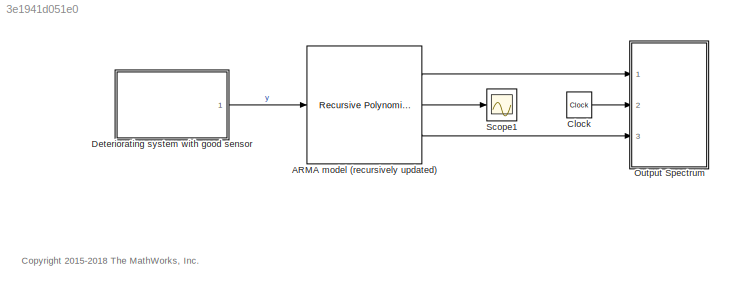
MODEL slx_3e1941d051e0
KIND model
CONFIG AbsTol = auto
CONFIG EnableMultiTasking = on
CONFIG FixedStep = auto
CONFIG MaxStep = auto
CONFIG MinStep = auto
CONFIG PreLoadFcn = Ts = 1/256;\nynoi = 0.2;\nnum0 = [1     -0.10075     -0.26052     -0.24022];\nden0 = [1      -4.5049       8.2675      -7.7122       3.6508         -0.7];\nnumF = [1.2642     -0.12736     -0.32935     -0.30369];\ndenF = [1      -4.5674        8.511      -8.0697       3.8856     -0.75805];\nPFnum = [0.00034    0.0017652   -0.0013829];\nPFden = [1       -1.896      0.91629];
CONFIG RelTol = 1e-3
CONFIG SampleTimeConstraint = Unconstrained
CONFIG SolverName = FixedStepDiscrete
CONFIG StartFcn = clear idARMAXSpectrumPlot
CONFIG StartTime = 0.0
CONFIG StopTime = 200
BLOCK [Reference] ARMA model (recursively updated)  REF=slident/Estimators/Recursive Polynomial Model Estimator  (lib defined in mdl_f7d4911ca73a)
  Ports = [1, 3]
  SourceBlock = slident/Estimators/Recursive Polynomial Model Estimator
  SourceProductBaseCode = ID
  SourceType = idEstimatorsPolyModel
BLOCK [Clock] Clock
  Decimation = 1
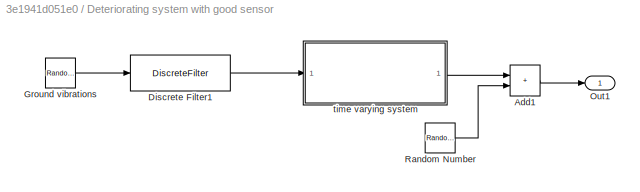
BLOCK [SubSystem] Deteriorating system with good sensor
  Ports = [0, 1]
  RequestExecContextInheritance = off
  VariantControl = DeterioratingSystem
BLOCK [Sum] Deteriorating system with good sensor/Add1
  IconShape = rectangular
  Ports = [2, 1]
BLOCK [DiscreteFilter] Deteriorating system with good sensor/Discrete Filter1
  Denominator = PFden
  InputPortMap = u0
  Numerator = PFnum
  Ports = [1, 1]
BLOCK [RandomNumber] Deteriorating system with good sensor/Ground vibrations
  SampleTime = Ts
  Variance = 0.62074
BLOCK [Outport] Deteriorating system with good sensor/Out1
  VectorParamsAs1DForOutWhenUnconnected = off
BLOCK [RandomNumber] Deteriorating system with good sensor/Random Number
  SampleTime = Ts
  Variance = ynoi
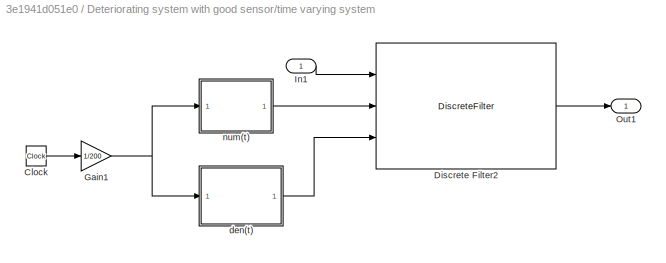
BLOCK [SubSystem] Deteriorating system with good sensor/time varying system
  Ports = [1, 1]
  RequestExecContextInheritance = off
BLOCK [Clock] Deteriorating system with good sensor/time varying system/Clock
BLOCK [DiscreteFilter] Deteriorating system with good sensor/time varying system/Discrete Filter2
  Denominator = PFden
  DenominatorSource = Input port
  InputPortMap = u0,p1,p3
  Numerator = PFnum
  NumeratorSource = Input port
  Ports = [3, 1]
  a0EqualsOne = on
BLOCK [Gain] Deteriorating system with good sensor/time varying system/Gain1
  Gain = 1/200
BLOCK [Inport] Deteriorating system with good sensor/time varying system/In1
BLOCK [Outport] Deteriorating system with good sensor/time varying system/Out1
  VectorParamsAs1DForOutWhenUnconnected = off
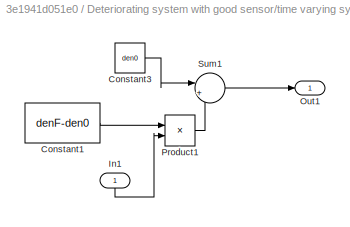
BLOCK [SubSystem] Deteriorating system with good sensor/time varying system/den(t)
  Ports = [1, 1]
  RequestExecContextInheritance = off
BLOCK [Constant] Deteriorating system with good sensor/time varying system/den(t)/Constant1
  SampleTime = Ts
  Value = denF-den0
BLOCK [Constant] Deteriorating system with good sensor/time varying system/den(t)/Constant3
  SampleTime = Ts
  Value = den0
BLOCK [Inport] Deteriorating system with good sensor/time varying system/den(t)/In1
  NameLocation = right
  SampleTime = Ts
BLOCK [Outport] Deteriorating system with good sensor/time varying system/den(t)/Out1
  VectorParamsAs1DForOutWhenUnconnected = off
BLOCK [Product] Deteriorating system with good sensor/time varying system/den(t)/Product1
  Ports = [2, 1]
BLOCK [Sum] Deteriorating system with good sensor/time varying system/den(t)/Sum1
  Inputs = |++
  Ports = [2, 1]
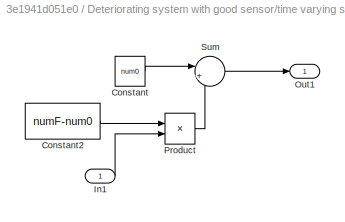
BLOCK [SubSystem] Deteriorating system with good sensor/time varying system/num(t)
  Ports = [1, 1]
  RequestExecContextInheritance = off
BLOCK [Constant] Deteriorating system with good sensor/time varying system/num(t)/Constant
  SampleTime = Ts
  Value = num0
BLOCK [Constant] Deteriorating system with good sensor/time varying system/num(t)/Constant2
  SampleTime = Ts
  Value = numF-num0
BLOCK [Inport] Deteriorating system with good sensor/time varying system/num(t)/In1
  SampleTime = Ts
BLOCK [Outport] Deteriorating system with good sensor/time varying system/num(t)/Out1
  VectorParamsAs1DForOutWhenUnconnected = off
BLOCK [Product] Deteriorating system with good sensor/time varying system/num(t)/Product
  Ports = [2, 1]
BLOCK [Sum] Deteriorating system with good sensor/time varying system/num(t)/Sum
  Inputs = |++
  Ports = [2, 1]
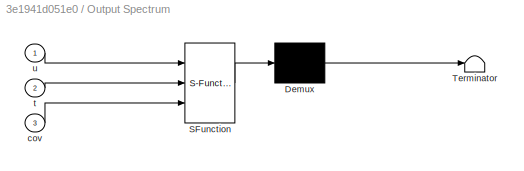
BLOCK [SubSystem] Output Spectrum
  ErrorFcn = Stateflow.Translate.translate
  PermitHierarchicalResolution = ExplicitOnly
  Ports = [3]
  RequestExecContextInheritance = off
  SFBlockType = MATLAB Function
BLOCK [Demux] Output Spectrum/ Demux 
  Outputs = 1
  Ports = [1, 1]
BLOCK [S-Function] Output Spectrum/ SFunction 
  EnableBusSupport = off
  FunctionName = sf_sfun
  PortCounts = [3 1]
  Ports = [3, 1]
  SFcnIsStateOwnerBlock = off
  SFunctionDeploymentMode = off
  Tag = Stateflow S-Function 2
BLOCK [Terminator] Output Spectrum/ Terminator 
BLOCK [Inport] Output Spectrum/cov
  Port = 3
BLOCK [Inport] Output Spectrum/t
  Port = 2
BLOCK [Inport] Output Spectrum/u
BLOCK [Scope] Scope1
  Floating = off
  NumInputPorts = 1
  Ports = [1]
  ScopeSpecificationString = Simulink.scopes.TimeScopeBlockCfg('CurrentConfiguration', extmgr.ConfigurationSet(extmgr.Configuration('Core','General UI',true),extmgr.Configuration('Core','Source UI',true),extmgr.Configuration('Sources','WiredSimulink',true,'DataLoggingVariableName','ScopeData1'),extmgr.Configuration('Visuals','Time Domain',true,'SerializedDisplays',{struct('MinYLimReal','-24.04296','MaxYLimReal','27.19043','YL...<+1515ch>
ANNOTATION (root): <copyright redacted>
LINE ARMA model (recursively updated):1 -> Output Spectrum:1
LINE ARMA model (recursively updated):2 -> Scope1:1
LINE ARMA model (recursively updated):3 -> Output Spectrum:3
LINE Clock:1 -> Output Spectrum:2
LINE Deteriorating system with good sensor/Add1:1 -> Deteriorating system with good sensor/Out1:1
LINE Deteriorating system with good sensor/Discrete Filter1:1 -> Deteriorating system with good sensor/time varying system:1
LINE Deteriorating system with good sensor/Ground vibrations:1 -> Deteriorating system with good sensor/Discrete Filter1:1
LINE Deteriorating system with good sensor/Random Number:1 -> Deteriorating system with good sensor/Add1:2
LINE Deteriorating system with good sensor/time varying system/Clock:1 -> Deteriorating system with good sensor/time varying system/Gain1:1
LINE Deteriorating system with good sensor/time varying system/Discrete Filter2:1 -> Deteriorating system with good sensor/time varying system/Out1:1
NET Deteriorating system with good sensor/time varying system/Gain1:1 -> Deteriorating system with good sensor/time varying system/den(t):1, Deteriorating system with good sensor/time varying system/num(t):1
LINE Deteriorating system with good sensor/time varying system/In1:1 -> Deteriorating system with good sensor/time varying system/Discrete Filter2:1
LINE Deteriorating system with good sensor/time varying system/den(t)/Constant1:1 -> Deteriorating system with good sensor/time varying system/den(t)/Product1:1
LINE Deteriorating system with good sensor/time varying system/den(t)/Constant3:1 -> Deteriorating system with good sensor/time varying system/den(t)/Sum1:1
LINE Deteriorating system with good sensor/time varying system/den(t)/In1:1 -> Deteriorating system with good sensor/time varying system/den(t)/Product1:2
LINE Deteriorating system with good sensor/time varying system/den(t)/Product1:1 -> Deteriorating system with good sensor/time varying system/den(t)/Sum1:2
LINE Deteriorating system with good sensor/time varying system/den(t)/Sum1:1 -> Deteriorating system with good sensor/time varying system/den(t)/Out1:1
LINE Deteriorating system with good sensor/time varying system/den(t):1 -> Deteriorating system with good sensor/time varying system/Discrete Filter2:3
LINE Deteriorating system with good sensor/time varying system/num(t)/Constant2:1 -> Deteriorating system with good sensor/time varying system/num(t)/Product:1
LINE Deteriorating system with good sensor/time varying system/num(t)/Constant:1 -> Deteriorating system with good sensor/time varying system/num(t)/Sum:1
LINE Deteriorating system with good sensor/time varying system/num(t)/In1:1 -> Deteriorating system with good sensor/time varying system/num(t)/Product:2
LINE Deteriorating system with good sensor/time varying system/num(t)/Product:1 -> Deteriorating system with good sensor/time varying system/num(t)/Sum:2
LINE Deteriorating system with good sensor/time varying system/num(t)/Sum:1 -> Deteriorating system with good sensor/time varying system/num(t)/Out1:1
LINE Deteriorating system with good sensor/time varying system/num(t):1 -> Deteriorating system with good sensor/time varying system/Discrete Filter2:2
LINE Deteriorating system with good sensor/time varying system:1 -> Deteriorating system with good sensor/Add1:1
LINE Deteriorating system with good sensor:1 -> ARMA model (recursively updated):1
note: NET lines group one-source signal fan-out (src -> all destinations, sorted); 1:1 wires keep LINE
CHART Output Spectrum states=1 transitions=1
  STATE_LABEL 'eML_blk_kernel()'
  STATE_LABEL "SCRIPT:\nfunction fcn(u,t,cov)\n% Code for the Output Spectrum block.\n\ncoder.extrinsic('pdmARMASpectrumPlot')\nl = 8;\na = u(1:l);\nc = u(l+1:end-1);\n\npdmARMASpectrumPlot(a, c, t, cov)\n"
CHART  states=0 transitions=0
